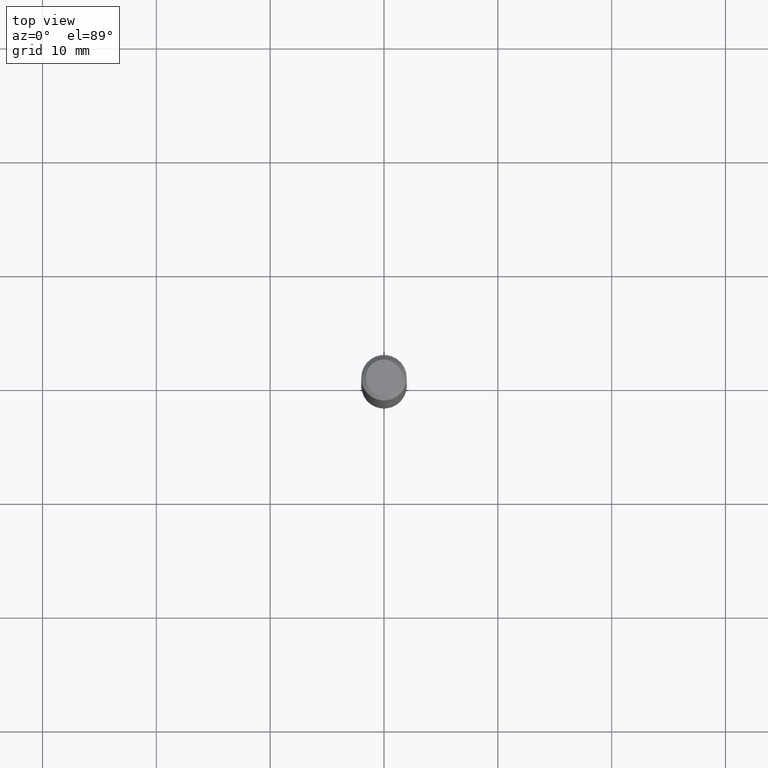
[diagram: clean part render]
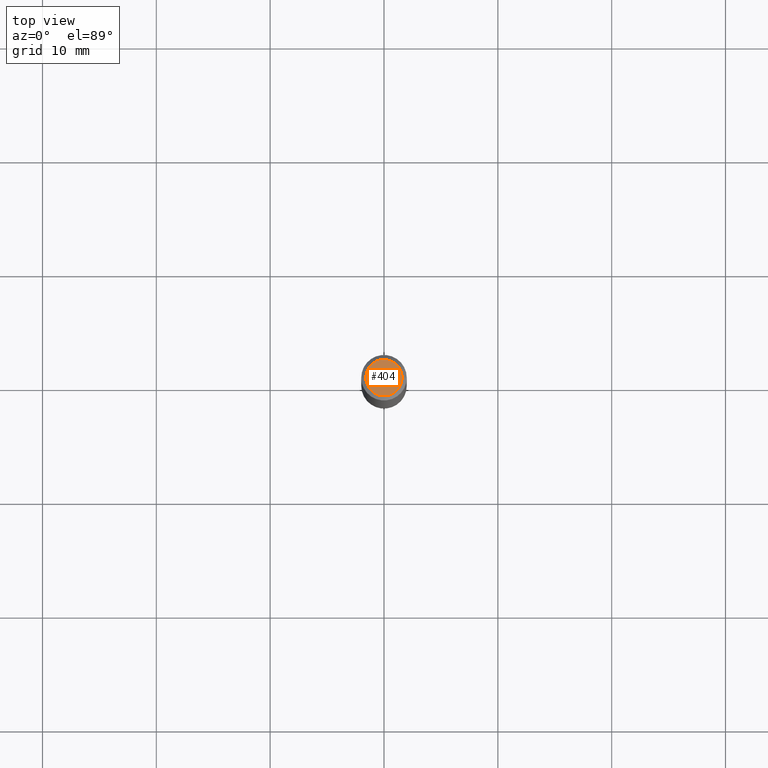
[diagram: same view with one face highlighted and labeled with its STEP entity id]
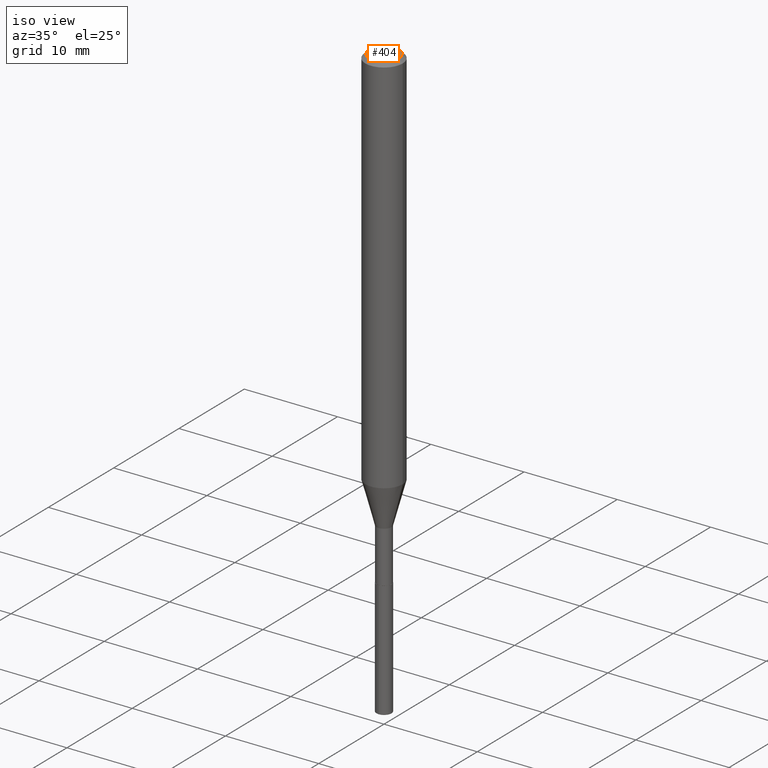
[diagram: same view with one face highlighted and labeled with its STEP entity id]
A machine part, top view. The second image highlights one B-rep face of the part: STEP entity #404.
A second angle (iso view) of the same face is appended — the face is thin or edge-on in the first view.
In plain terms, the highlighted planar face has unit normal (0, -0, -1).
Its self-contained STEP definition (entity closure, byte-faithful):
#16 = PLANE ( 'NONE',  #194 ) ;
#41 = AXIS2_PLACEMENT_3D ( 'NONE', #482, #210, #336 ) ;
#58 = EDGE_CURVE ( 'NONE', #170, #192, #423, .T. ) ;
#75 = CARTESIAN_POINT ( 'NONE',  ( 0.06300000000000000044, -5.137332111354473202E-16, -3.855188123712532709E-18 ) ) ;
#83 = CARTESIAN_POINT ( 'NONE',  ( 4.713871149261278955E-47, -6.730158695841834933E-33, -1.927594061857933439E-18 ) ) ;
#112 = AXIS2_PLACEMENT_3D ( 'NONE', #250, #174, #329 ) ;
#159 = ORIENTED_EDGE ( 'NONE', *, *, #58, .T. ) ;
#170 = VERTEX_POINT ( 'NONE', #341 ) ;
#174 = DIRECTION ( 'NONE',  ( -2.445468806185136597E-29, 3.491481338843145583E-15, 1.000000000000000000 ) ) ;
#192 = VERTEX_POINT ( 'NONE', #75 ) ;
#194 = AXIS2_PLACEMENT_3D ( 'NONE', #83, #314, #431 ) ;
#210 = DIRECTION ( 'NONE',  ( -2.445468806185136597E-29, 3.491481338843145583E-15, 1.000000000000000000 ) ) ;
#222 = EDGE_CURVE ( 'NONE', #192, #170, #326, .T. ) ;
#250 = CARTESIAN_POINT ( 'NONE',  ( 9.427742298522557911E-47, -1.346031739168366987E-32, -3.855188123715866879E-18 ) ) ;
#314 = DIRECTION ( 'NONE',  ( 2.438088387897960049E-29, -3.491481338843145188E-15, -1.000000000000000000 ) ) ;
#326 = CIRCLE ( 'NONE', #112, 0.06300000000000000044 ) ;
#329 = DIRECTION ( 'NONE',  ( 1.000000000000000000, -6.982962677686265922E-15, 4.875905316334701673E-29 ) ) ;
#336 = DIRECTION ( 'NONE',  ( 1.000000000000000000, -6.982962677686265922E-15, 4.875905316334701673E-29 ) ) ;
#341 = CARTESIAN_POINT ( 'NONE',  ( -0.06300000000000000044, 4.674220642376241466E-16, -3.855188123719040041E-18 ) ) ;
#353 = FACE_OUTER_BOUND ( 'NONE', #419, .T. ) ;
#404 = ADVANCED_FACE ( 'NONE', ( #353 ), #16, .F. ) ;
#419 = EDGE_LOOP ( 'NONE', ( #159, #424 ) ) ;
#423 = CIRCLE ( 'NONE', #41, 0.06300000000000000044 ) ;
#424 = ORIENTED_EDGE ( 'NONE', *, *, #222, .T. ) ;
#431 = DIRECTION ( 'NONE',  ( -1.000000000000000000, 6.982962677686265922E-15, -4.876176775795935793E-29 ) ) ;
#482 = CARTESIAN_POINT ( 'NONE',  ( 9.427742298522557911E-47, -1.346031739168366987E-32, -3.855188123715866879E-18 ) ) ;